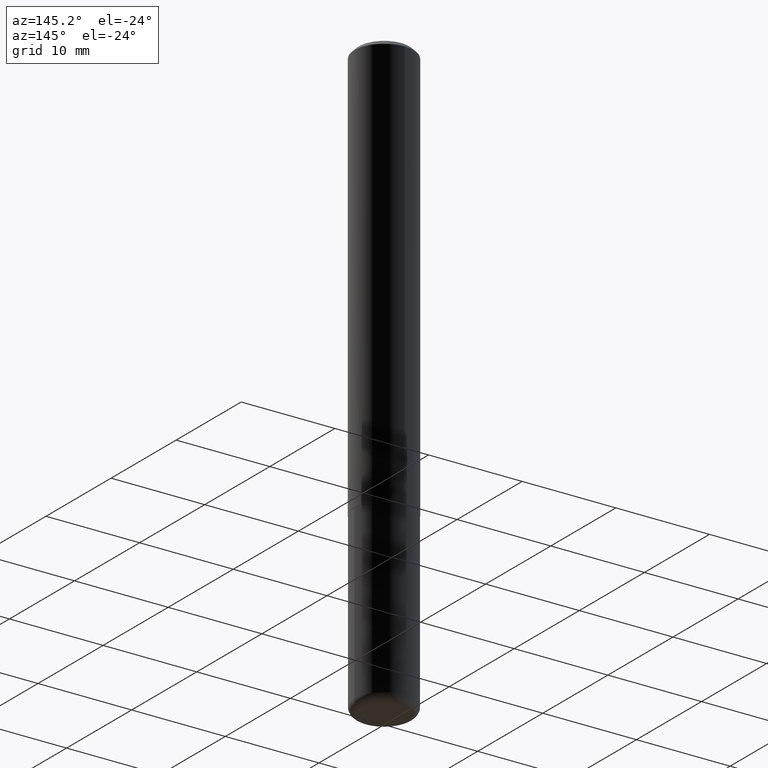
[diagram: clean part render]
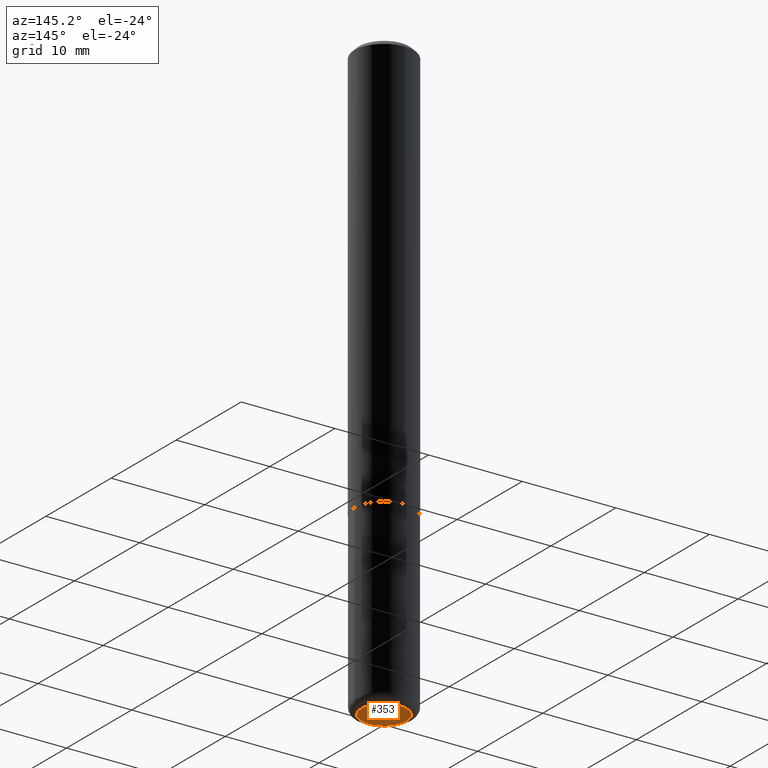
[diagram: same view with one face highlighted and labeled with its STEP entity id]
A machine part, auxiliary view. The second image highlights one B-rep face of the part: STEP entity #353.
In plain terms, the highlighted planar face has unit normal (0, -0, -1).
Its self-contained STEP definition (entity closure, byte-faithful):
#22 = FACE_OUTER_BOUND ( 'NONE', #31, .T. ) ;
#31 = EDGE_LOOP ( 'NONE', ( #315, #369 ) ) ;
#48 = DIRECTION ( 'NONE',  ( -2.445468806185136597E-29, 3.491481338843145583E-15, 1.000000000000000000 ) ) ;
#51 = AXIS2_PLACEMENT_3D ( 'NONE', #103, #75, #336 ) ;
#54 = CARTESIAN_POINT ( 'NONE',  ( -0.09499999999999998723, -7.894734117689107359E-15, -2.500000000000000444 ) ) ;
#75 = DIRECTION ( 'NONE',  ( -2.445468806185136597E-29, 3.491481338843145583E-15, 1.000000000000000000 ) ) ;
#103 = CARTESIAN_POINT ( 'NONE',  ( 6.113672015462842613E-29, -8.728703347107866520E-15, -2.500000000000000444 ) ) ;
#132 = CIRCLE ( 'NONE', #224, 0.09499999999999998723 ) ;
#146 = PLANE ( 'NONE',  #238 ) ;
#186 = VERTEX_POINT ( 'NONE', #299 ) ;
#209 = DIRECTION ( 'NONE',  ( 2.438088387897960049E-29, -3.491481338843145188E-15, -1.000000000000000000 ) ) ;
#224 = AXIS2_PLACEMENT_3D ( 'NONE', #340, #48, #281 ) ;
#230 = CIRCLE ( 'NONE', #51, 0.09499999999999998723 ) ;
#238 = AXIS2_PLACEMENT_3D ( 'NONE', #406, #209, #407 ) ;
#279 = EDGE_CURVE ( 'NONE', #186, #338, #230, .T. ) ;
#281 = DIRECTION ( 'NONE',  ( 1.000000000000000000, -6.982962677686273021E-15, 0.000000000000000000 ) ) ;
#299 = CARTESIAN_POINT ( 'NONE',  ( 0.09499999999999998723, -9.392084801488061542E-15, -2.500000000000000444 ) ) ;
#315 = ORIENTED_EDGE ( 'NONE', *, *, #279, .F. ) ;
#332 = EDGE_CURVE ( 'NONE', #338, #186, #132, .T. ) ;
#336 = DIRECTION ( 'NONE',  ( 1.000000000000000000, -6.982962677686273021E-15, 0.000000000000000000 ) ) ;
#338 = VERTEX_POINT ( 'NONE', #54 ) ;
#340 = CARTESIAN_POINT ( 'NONE',  ( 6.113672015462842613E-29, -8.728703347107866520E-15, -2.500000000000000444 ) ) ;
#353 = ADVANCED_FACE ( 'NONE', ( #22 ), #146, .T. ) ;
#369 = ORIENTED_EDGE ( 'NONE', *, *, #332, .F. ) ;
#406 = CARTESIAN_POINT ( 'NONE',  ( -3.926534606047510986E-29, -2.310685068218294639E-14, -2.500000000000000000 ) ) ;
#407 = DIRECTION ( 'NONE',  ( -1.000000000000000000, 6.982962677686265922E-15, -4.876176775795935793E-29 ) ) ;